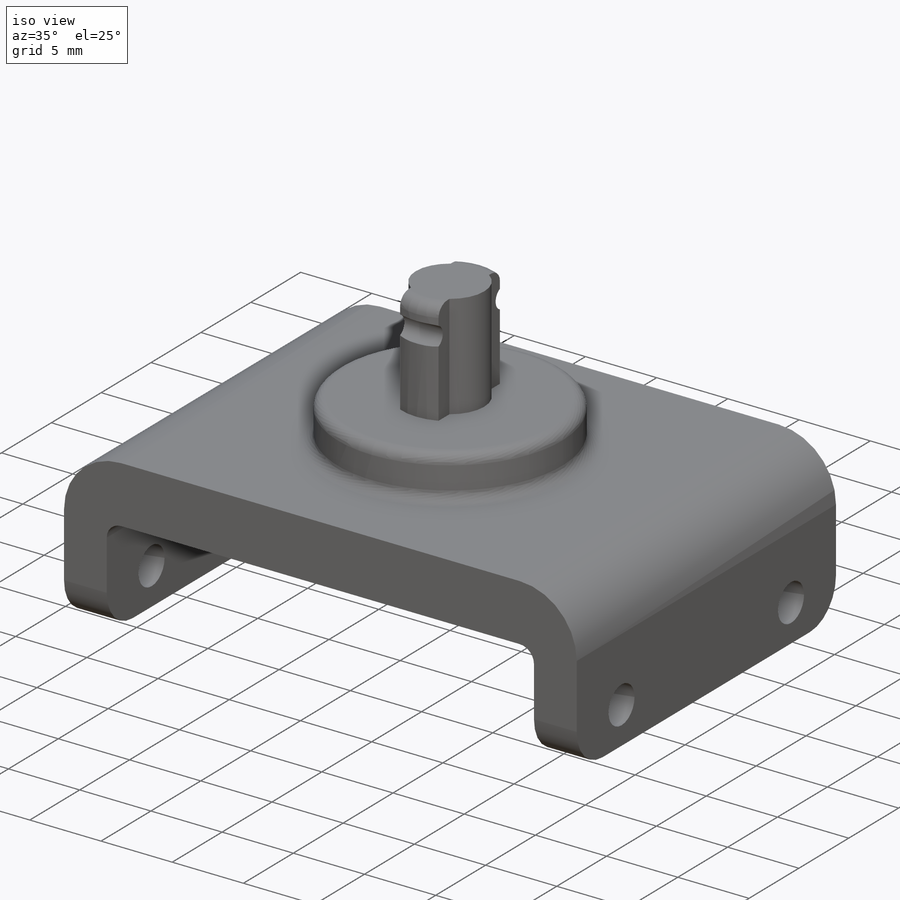
[diagram: iso view]
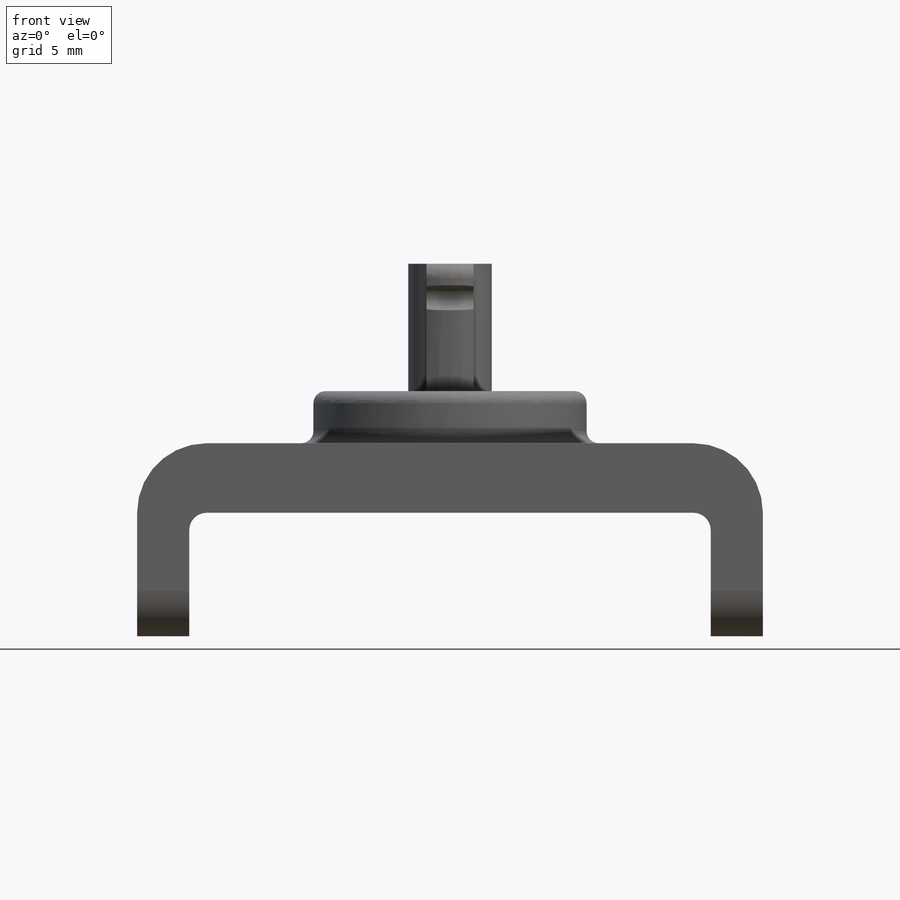
[diagram: front view]
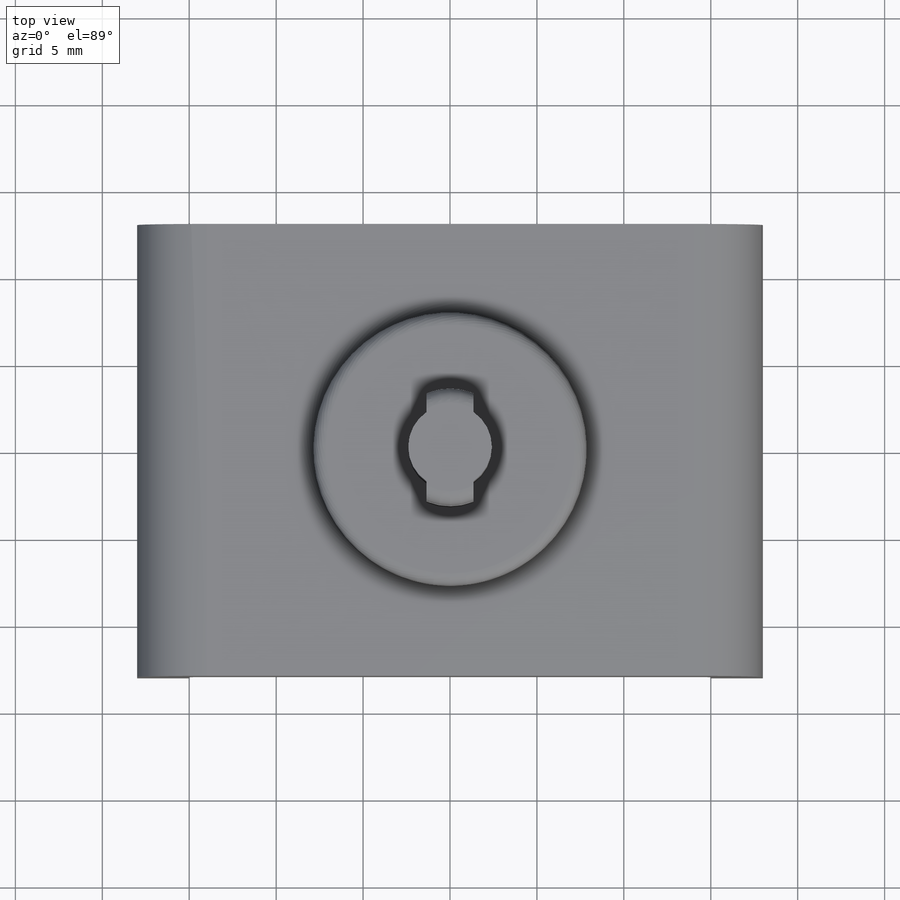
[diagram: top view]
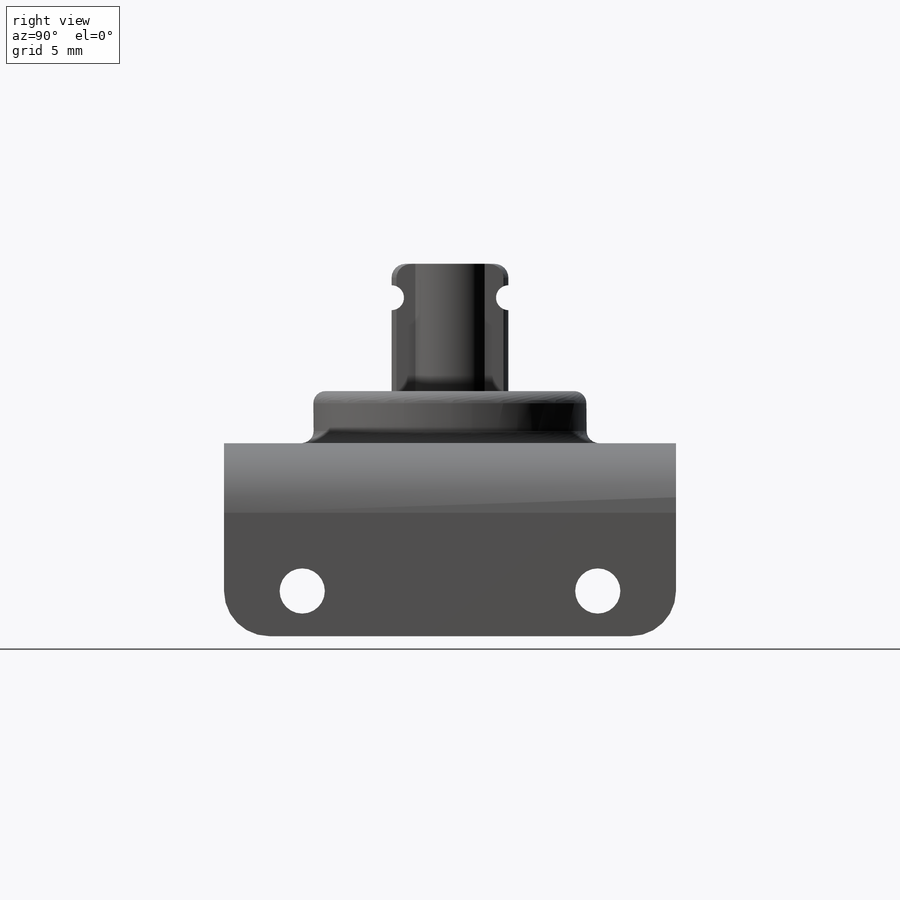
[diagram: right view]
SOLIDWORKS PART (.sldprt)
format: sldprt  version: not decoded by parser v0  size: 299,008 bytes
history: native  units: mm
features: sketch x5, fillet x5, extrude x3, cut_extrude x2, material x1 (+16 scaffold rows collapsed)
feature tree (32):
  scaffold x16  (default folders/planes/origin — collapsed)
  material  "Material <not specified>"
  sketch  "Sketch1"  dims[D1=3.0mm D2=30.0mm D3=4.0mm D4=7.1mm]
  extrude  "Boss-Extrude1"  Depth=26mm
  sketch  "Sketch2"  dims[D2=2.6mm D1=2.6mm D3=17.0mm D4=2.6mm]
  cut_extrude  "Cut-Extrude1"  [1 undecoded]
  fillet  "Fillet1"  Radius=1mm
  fillet  "Fillet2"  Radius=2.6mm
  fillet  "Fillet3"  Radius=4mm
  sketch  "Sketch3"  dims[D1=15.72mm]
  extrude  "Boss-Extrude2"  Depth=3mm
  fillet  "Fillet4"  Radius=0.7mm
  sketch  "Sketch5"  dims[c1.D1=4.81mm c1.D3=6.72mm c1.D2=2.7mm c2.D3=6.72mm]
  extrude  "Boss-Extrude3"  Depth=7.32mm
  sketch  "Sketch6"  dims[D1=5.29mm D2=5.37mm]
  cut_extrude  "Cut-Extrude2"  [1 undecoded]
  fillet  "Fillet5"  Radius=0.8mm
decode coverage: 13 of 15 modeling features carry decoded parameters
note: 2 parameter values undecoded
note: suppression state not decoded; provenance and decode notes live in map.json
